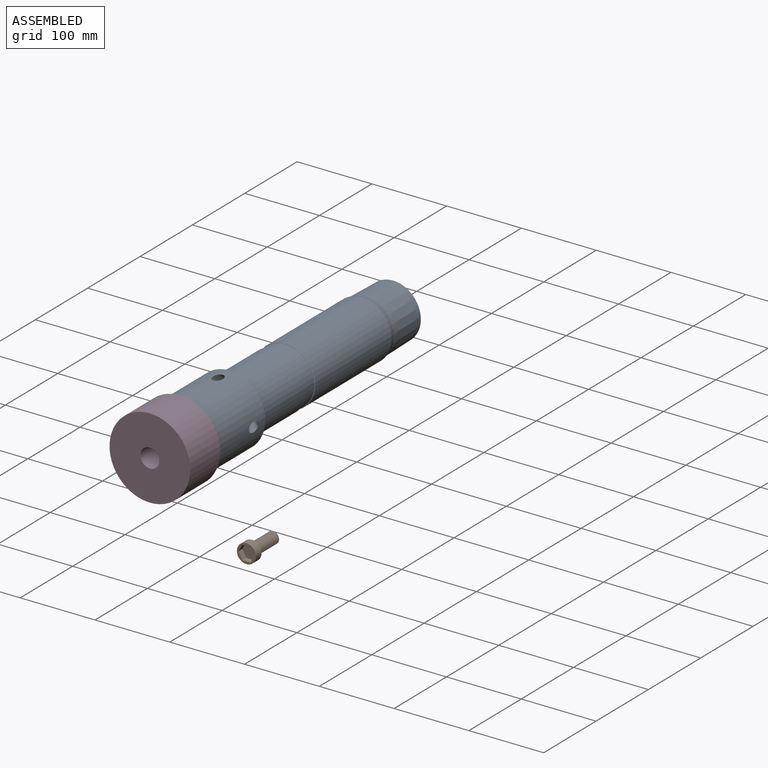
[diagram: assembled view]
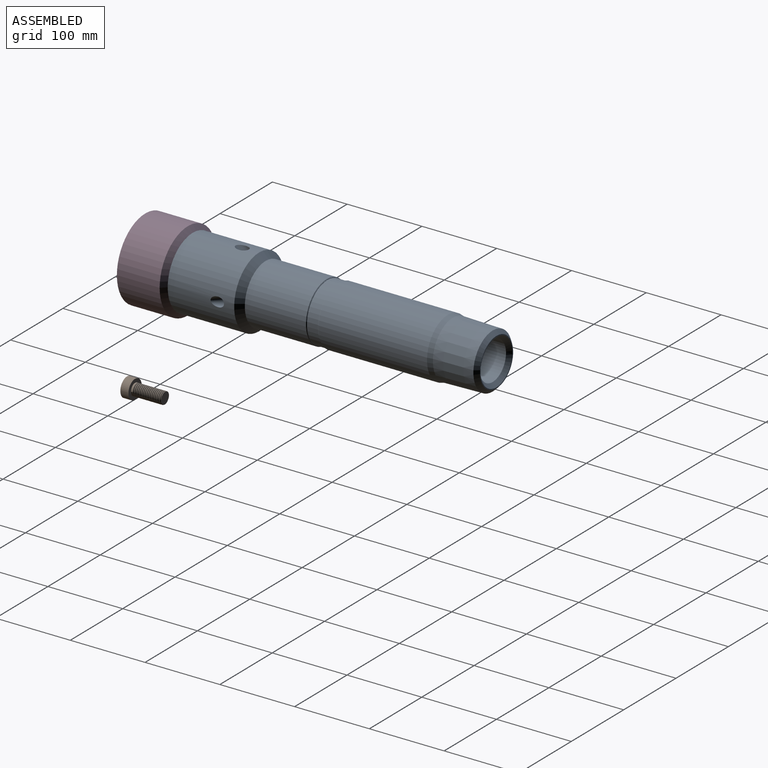
[diagram: assembled view, second angle]
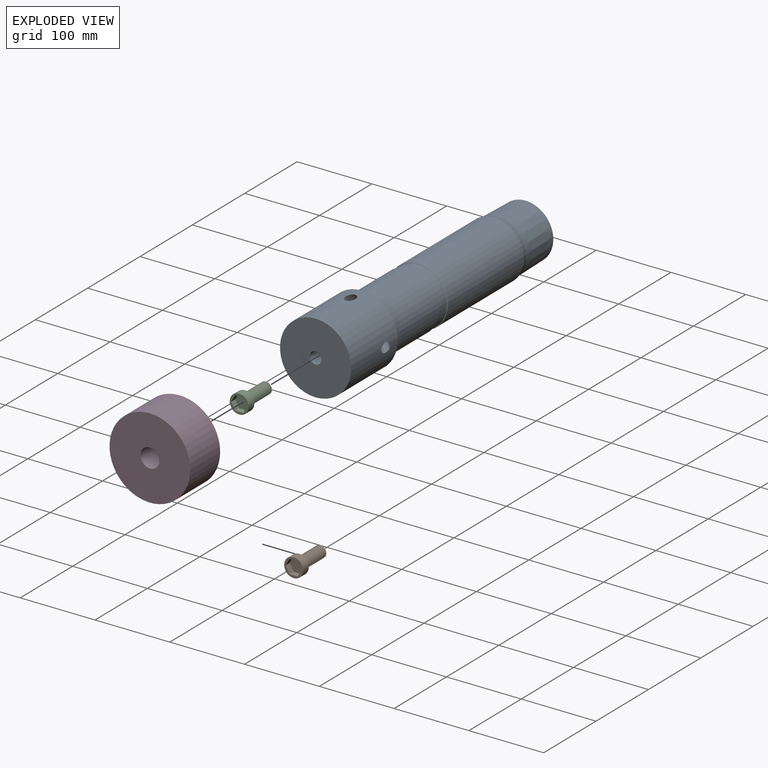
[diagram: exploded view]
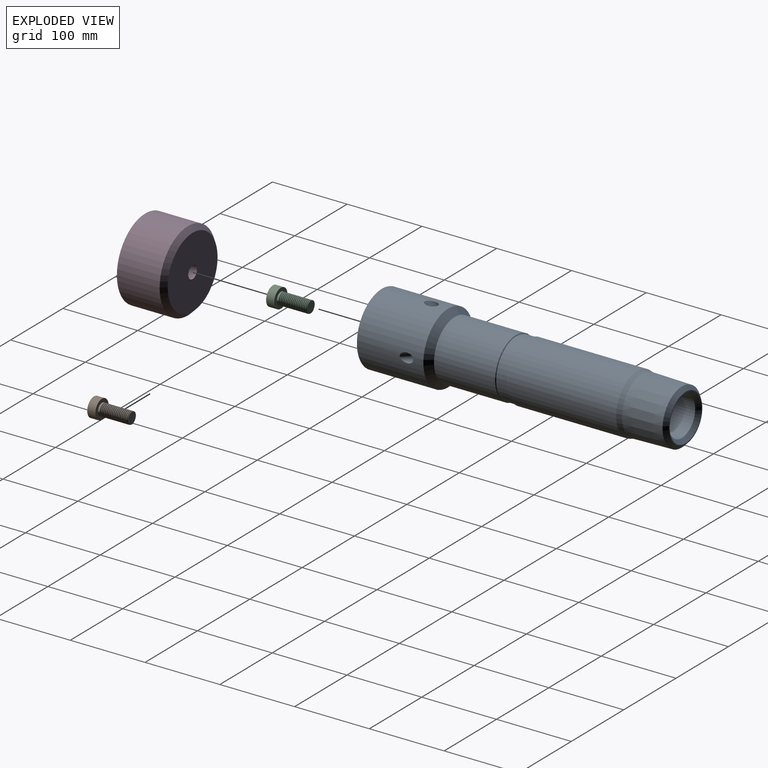
[diagram: exploded view, second angle]
ASSEMBLY  parts=3 mates=4
PART A: 22 faces, bbox 113.2x406.4x113.2 mm
  f0: cylinder r=47.62mm len=95.25mm, axis (0,-1,0), area 25883.4mm2, adj f7,f8,f16,f17,f18,f19
  f1: cone r=25.4mm half-angle=65.7deg, axis (0,-1,0), area 1731.9mm2, adj f2,f13,f16,f17,f18,f19
  f2: cylinder r=25.4mm len=312.42mm, axis (0,-1,0), area 49502.3mm2, adj f1,f16,f17,f18,f19,f20
  f3: cylinder r=39.69mm len=145.14mm, axis (0,-1,0), area 36192.3mm2, adj f4,f15
  f4: cone r=39.69mm half-angle=13.1deg, axis (0,1,0), area 1710mm2, adj f3,f5
  f5: cone r=38.1mm half-angle=1.2deg, axis (0,1,0), area 12573.6mm2, adj f4,f21
  f6: plane 63.5x63.5mm, normal (0,-1,0), area 248.3mm2, adj f20,f21
  f7: plane 95.25x95.25mm, normal (0,1,0), area 6927.6mm2, adj f0,f13
  f8: cone r=47.62mm half-angle=42.5deg, axis (0,1,0), area 3221.1mm2, adj f0,f9
  f9: cylinder r=39.69mm len=81.73mm, axis (0,-1,0), area 20379.8mm2, adj f8,f14
  f10: plane 77.85x77.85mm, normal (0,-1,0), area 61.9mm2, adj f11,f14
  f11: cylinder r=38.67mm len=77.34mm, axis (0,-1,0), area 3703mm2, adj f10,f12
  f12: plane 77.85x77.85mm, normal (0,1,0), area 61.9mm2, adj f11,f15
  f13: cylinder r=7.94mm len=81.03mm, axis (0,1,0), area 4041.2mm2, adj f1,f7
  f14: cone r=38.93mm half-angle=45deg, axis (0,1,0), area 266.1mm2, adj f9,f10
  f15: cone r=39.69mm half-angle=45deg, axis (0,-1,0), area 266.1mm2, adj f3,f12
  f16: cylinder r=6.35mm len=40.19mm, axis (0,-0.71,-0.71), area 1375.1mm2, adj f0,f1,f2
  f17: cylinder r=6.35mm len=40.19mm, axis (0.71,-0.71,0), area 1375.1mm2, adj f0,f1,f2
  f18: cylinder r=6.35mm len=40.19mm, axis (0,-0.71,0.71), area 1375.1mm2, adj f0,f1,f2
  f19: cylinder r=6.35mm len=40.19mm, axis (-0.71,-0.71,0), area 1375.1mm2, adj f0,f1,f2
  f20: cone r=25.4mm half-angle=45deg, axis (0,-1,0), area 1261.2mm2, adj f2,f6
  f21: cone r=31.75mm half-angle=45.6deg, axis (0,1,0), area 1567.1mm2, adj f5,f6
PART B: 32 faces, bbox 26.1x52.8x26.1 mm
  f0: plane 25.4x25.4mm, normal (0,-1,0), area 207.7mm2, adj f21,f25,f26,f27,f28,f29,f30
  f1: plane 15.93x15.68mm, normal (0,1,0), area 178.3mm2, adj f19,f22,f23
  f2: cylinder r=7.92mm len=15.85mm, axis (0,-1,0), area 92.6mm2, adj f3,f20,f22,f23,f24
  f3: cylinder r=7.92mm len=15.85mm, axis (0,-1,0), area 35.8mm2, adj f2,f4,f22,f23
  f4: cylinder r=7.92mm len=15.85mm, axis (0,-1,0), area 35.8mm2, adj f3,f5,f22,f23
  f5: cylinder r=7.92mm len=15.85mm, axis (0,-1,0), area 35.8mm2, adj f4,f6,f22,f23
  f6: cylinder r=7.92mm len=15.85mm, axis (0,-1,0), area 35.8mm2, adj f5,f7,f22,f23
  f7: cylinder r=7.92mm len=15.85mm, axis (0,-1,0), area 35.8mm2, adj f6,f8,f22,f23
  f8: cylinder r=7.92mm len=15.85mm, axis (0,-1,0), area 35.8mm2, adj f7,f9,f22,f23
  f9: cylinder r=7.92mm len=15.85mm, axis (0,-1,0), area 35.8mm2, adj f8,f10,f22,f23
  f10: cylinder r=7.92mm len=15.85mm, axis (0,-1,0), area 35.8mm2, adj f9,f11,f22,f23
  f11: cylinder r=7.92mm len=15.85mm, axis (0,-1,0), area 35.8mm2, adj f10,f12,f22,f23
  f12: cylinder r=7.92mm len=15.85mm, axis (0,-1,0), area 35.8mm2, adj f11,f13,f22,f23
  f13: cylinder r=7.92mm len=15.85mm, axis (0,-1,0), area 35.8mm2, adj f12,f14,f22,f23
  f14: cylinder r=7.92mm len=15.85mm, axis (0,-1,0), area 35.8mm2, adj f13,f15,f22,f23
  f15: cylinder r=7.92mm len=15.85mm, axis (0,-1,0), area 35.8mm2, adj f14,f16,f22,f23
  f16: cylinder r=7.92mm len=15.85mm, axis (0,-1,0), area 35.8mm2, adj f15,f17,f22,f23
  f17: cylinder r=7.92mm len=15.85mm, axis (0,-1,0), area 35.8mm2, adj f16,f18,f22,f23
  f18: cylinder r=7.92mm len=15.85mm, axis (0,-1,0), area 35.8mm2, adj f17,f19,f22,f23
  f19: cylinder r=7.92mm len=15.85mm, axis (0,-1,0), area 23.7mm2, adj f1,f18,f22,f23
  f20: plane 25.4x25.4mm, normal (0,1,0), area 309.4mm2, adj f2,f21
  f21: cylinder r=12.7mm len=25.4mm, axis (0,-1,0), area 863.4mm2, adj f0,f20
  f22: bspline ~40.7x18.3mm, area 1139.4mm2, adj f1,f2,f3,f4,f5,f6,f7,f8
  f23: bspline ~39.96x18.3mm, area 1119mm2, adj f1,f2,f3,f4,f5,f6,f7,f8
  f24: plane 1.52x1.18mm, normal (0,0,-1), area 0.9mm2, adj f2,f22,f23
  f25: plane 10.73x7.62mm, normal (0,0,-1), area 81.7mm2, adj f0,f26,f30,f31
  f26: plane 9.29x7.62mm, normal (0.87,0,-0.5), area 81.7mm2, adj f0,f25,f27,f31
  f27: plane 9.29x7.62mm, normal (0.87,0,0.5), area 81.7mm2, adj f0,f26,f28,f31
  f28: plane 10.73x7.62mm, normal (0,0,1), area 81.7mm2, adj f0,f27,f29,f31
  f29: plane 9.29x7.62mm, normal (-0.87,0,0.5), area 81.7mm2, adj f0,f28,f30,f31
  f30: plane 9.29x7.62mm, normal (-0.87,0,-0.5), area 81.7mm2, adj f0,f25,f29,f31
  f31: plane 21.46x18.58mm, normal (0,-1,0), area 299mm2, adj f25,f26,f27,f28,f29,f30
PART C: 7 faces, bbox 108x108x63.5 mm
  f0: cylinder r=53.98mm len=107.95mm, axis (0,0,-1), area 19381.6mm2, adj f1,f6
  f1: plane 107.95x107.95mm, normal (0,0,1), area 8645.7mm2, adj f0,f5
  f2: plane 95.25x95.25mm, normal (0,0,-1), area 6907.4mm2, adj f3,f6
  f3: cylinder r=8.33mm len=31.75mm, axis (0,0,1), area 1662.5mm2, adj f2,f4
  f4: plane 25.4x25.4mm, normal (0,0,1), area 288.5mm2, adj f3,f5
  f5: cylinder r=12.7mm len=31.75mm, axis (0,0,1), area 2533.5mm2, adj f1,f4
  f6: cone r=53.98mm half-angle=45deg, axis (0,0,1), area 2866.4mm2, adj f0,f2
PLACE A rot(axis=(1,0,0),180deg) t=(-135.36,163.57,-95.65)mm
PLACE B t=(-135.36,27.27,-95.65)mm
PLACE C rot(axis=(1,0,0),90deg) t=(-135.36,18.79,-95.65)mm
MATE cylindrical C.f0 <-> A.f0  axis (0,1,0) through (-135.36,18.79,-95.65)mm
MATE cylindrical B.f2 <-> C.f3  axis (0,1,0) through (-135.36,-0.26,-95.65)mm
MATE parallel C.f3 <-> B.f2  axis (0,-1,0) through (-135.36,-12.96,-95.65)mm
MATE parallel A.f0 <-> C.f0  axis (0,-1,0) through (-135.36,18.79,-95.65)mm
